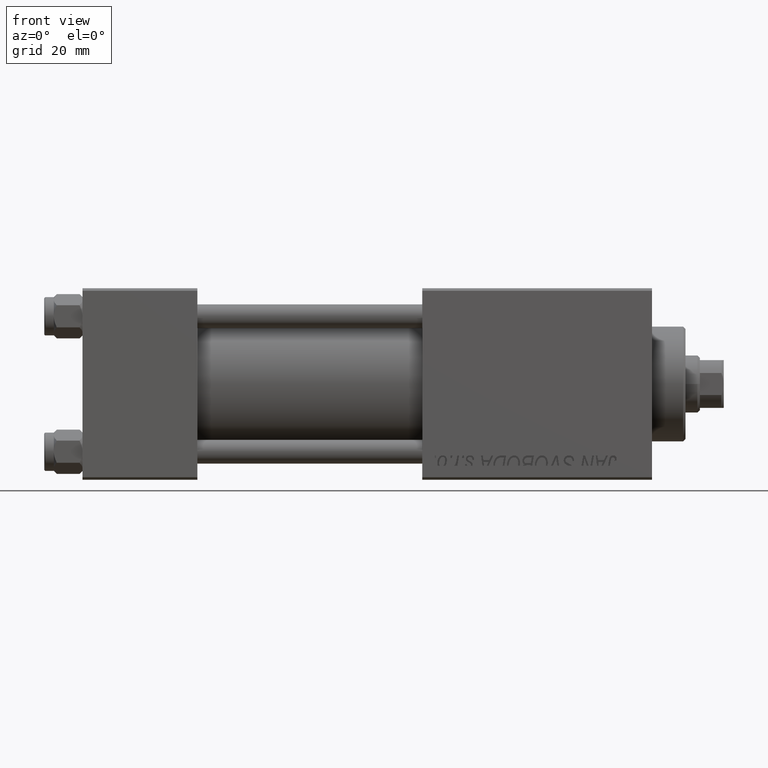
[diagram: clean part render]
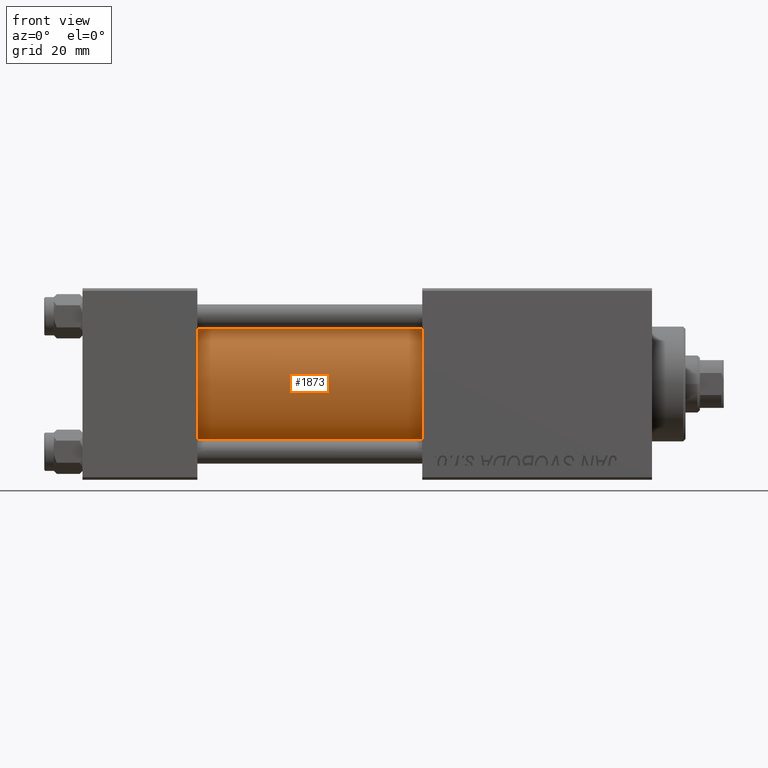
[diagram: same view with one face highlighted and labeled with its STEP entity id]
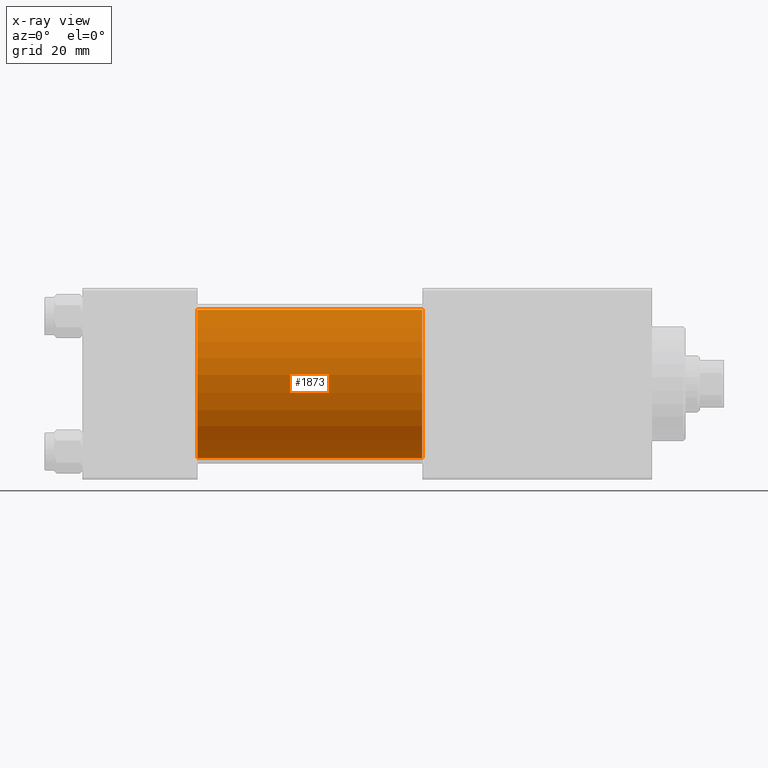
[diagram: x-ray of the same camera — body ghosted, the highlighted face saturated]
A machine part, front view. The second image highlights one B-rep face of the part: STEP entity #1873.
The next image is the same camera in x-ray: the body ghosted, the highlighted face saturated — about 0% of this face is hidden behind the body in this view.
In plain terms, the highlighted cylindrical surface (partial cylindrical patch) has radius 15.5 mm, axis along (-1, -0, -0).
Its self-contained STEP definition (entity closure, byte-faithful):
#1873 = ADVANCED_FACE ( 'NONE', ( #48711 ), #21350, .T. ) ;
#9696 = ORIENTED_EDGE ( 'NONE', *, *, #46728, .T. ) ;
#10582 = CARTESIAN_POINT ( 'NONE',  ( 71.00000000000001421, -7.038826752868131828E-16, -15.50000000000000000 ) ) ;
#11366 = CARTESIAN_POINT ( 'NONE',  ( 71.00000000000001421, -7.038826752868131828E-16, -15.50000000000000000 ) ) ;
#15183 = LINE ( 'NONE', #33926, #17064 ) ;
#15389 = CARTESIAN_POINT ( 'NONE',  ( 24.00000000000000000, -2.602085213965210642E-15, 0.000000000000000000 ) ) ;
#15428 = CARTESIAN_POINT ( 'NONE',  ( 24.00000000000000000, -7.038826752868131828E-16, -15.50000000000000000 ) ) ;
#15675 = DIRECTION ( 'NONE',  ( -1.000000000000000000, -0.000000000000000000, -0.000000000000000000 ) ) ;
#17064 = VECTOR ( 'NONE', #15675, 1000.000000000000000 ) ;
#18693 = ORIENTED_EDGE ( 'NONE', *, *, #35129, .T. ) ;
#21350 = CYLINDRICAL_SURFACE ( 'NONE', #49734, 15.50000000000000000 ) ;
#21947 = CARTESIAN_POINT ( 'NONE',  ( 71.00000000000001421, -2.602085213965210642E-15, 15.50000000000000000 ) ) ;
#22970 = AXIS2_PLACEMENT_3D ( 'NONE', #29268, #40694, #43992 ) ;
#27753 = ORIENTED_EDGE ( 'NONE', *, *, #46721, .F. ) ;
#27960 = VERTEX_POINT ( 'NONE', #28884 ) ;
#28748 = CIRCLE ( 'NONE', #36064, 15.50000000000000000 ) ;
#28884 = CARTESIAN_POINT ( 'NONE',  ( 24.00000000000000000, -2.602085213965210642E-15, 15.50000000000000000 ) ) ;
#29187 = CARTESIAN_POINT ( 'NONE',  ( 71.00000000000001421, -2.602085213965210642E-15, 0.000000000000000000 ) ) ;
#29268 = CARTESIAN_POINT ( 'NONE',  ( 71.00000000000001421, -2.602085213965210642E-15, 0.000000000000000000 ) ) ;
#30843 = DIRECTION ( 'NONE',  ( 1.000000000000000000, 0.000000000000000000, 0.000000000000000000 ) ) ;
#31004 = VERTEX_POINT ( 'NONE', #11366 ) ;
#33926 = CARTESIAN_POINT ( 'NONE',  ( 71.00000000000001421, -2.602085213965210642E-15, 15.50000000000000000 ) ) ;
#34659 = LINE ( 'NONE', #10582, #49022 ) ;
#35117 = VERTEX_POINT ( 'NONE', #15428 ) ;
#35129 = EDGE_CURVE ( 'NONE', #37085, #27960, #15183, .T. ) ;
#36064 = AXIS2_PLACEMENT_3D ( 'NONE', #15389, #30843, #46320 ) ;
#36627 = EDGE_LOOP ( 'NONE', ( #27753, #44003, #18693, #9696 ) ) ;
#37085 = VERTEX_POINT ( 'NONE', #21947 ) ;
#39982 = CIRCLE ( 'NONE', #22970, 15.50000000000000000 ) ;
#40694 = DIRECTION ( 'NONE',  ( 1.000000000000000000, 0.000000000000000000, 0.000000000000000000 ) ) ;
#40871 = DIRECTION ( 'NONE',  ( -1.000000000000000000, -0.000000000000000000, -0.000000000000000000 ) ) ;
#41600 = EDGE_CURVE ( 'NONE', #37085, #31004, #39982, .T. ) ;
#43992 = DIRECTION ( 'NONE',  ( 0.000000000000000000, 0.000000000000000000, -1.000000000000000000 ) ) ;
#44003 = ORIENTED_EDGE ( 'NONE', *, *, #41600, .F. ) ;
#46320 = DIRECTION ( 'NONE',  ( 0.000000000000000000, 0.000000000000000000, 1.000000000000000000 ) ) ;
#46721 = EDGE_CURVE ( 'NONE', #31004, #35117, #34659, .T. ) ;
#46728 = EDGE_CURVE ( 'NONE', #27960, #35117, #28748, .T. ) ;
#47950 = DIRECTION ( 'NONE',  ( 0.000000000000000000, 0.000000000000000000, 1.000000000000000000 ) ) ;
#48711 = FACE_OUTER_BOUND ( 'NONE', #36627, .T. ) ;
#49022 = VECTOR ( 'NONE', #50122, 1000.000000000000000 ) ;
#49734 = AXIS2_PLACEMENT_3D ( 'NONE', #29187, #40871, #47950 ) ;
#50122 = DIRECTION ( 'NONE',  ( -1.000000000000000000, -0.000000000000000000, -0.000000000000000000 ) ) ;